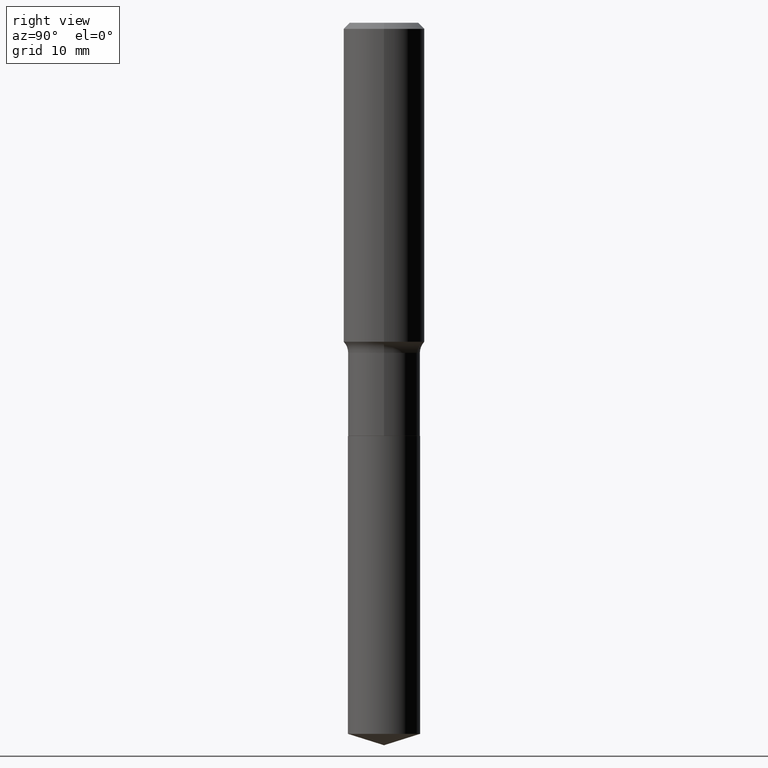
[diagram: clean part render]
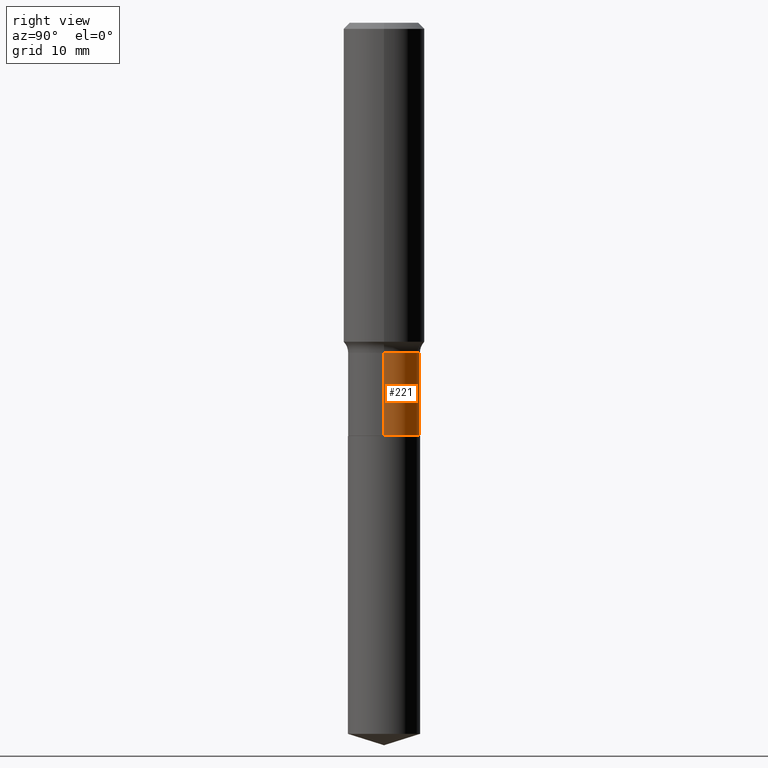
[diagram: same view with one face highlighted and labeled with its STEP entity id]
A machine part, right view. The second image highlights one B-rep face of the part: STEP entity #221.
In plain terms, the highlighted cylindrical surface (edge-blend (fillet) strip) has radius 4.4501 mm, axis along (-0, 0, 1).
Its self-contained STEP definition (entity closure, byte-faithful):
#8 = EDGE_CURVE ( 'NONE', #321, #196, #37, .T. ) ;
#22 = CYLINDRICAL_SURFACE ( 'NONE', #481, 0.1751999999999999391 ) ;
#28 = CIRCLE ( 'NONE', #66, 0.1751999999999999391 ) ;
#35 = CARTESIAN_POINT ( 'NONE',  ( 3.914951011821784364E-29, -5.589512475353991008E-15, -1.600899999999999768 ) ) ;
#37 = LINE ( 'NONE', #385, #266 ) ;
#51 = VERTEX_POINT ( 'NONE', #237 ) ;
#66 = AXIS2_PLACEMENT_3D ( 'NONE', #35, #347, #145 ) ;
#95 = CARTESIAN_POINT ( 'NONE',  ( 0.1751999999999999946, -8.218248775368990478E-15, -2.003399999999999626 ) ) ;
#118 = VERTEX_POINT ( 'NONE', #241 ) ;
#145 = DIRECTION ( 'NONE',  ( 1.000000000000000000, -6.982962677686265133E-15, 0.000000000000000000 ) ) ;
#163 = CARTESIAN_POINT ( 'NONE',  ( -0.1751999999999999391, 1.244870873051695093E-15, -8.617974278126592972E-30 ) ) ;
#165 = CIRCLE ( 'NONE', #425, 0.1751999999999999946 ) ;
#196 = VERTEX_POINT ( 'NONE', #401 ) ;
#213 = LINE ( 'NONE', #163, #488 ) ;
#221 = ADVANCED_FACE ( 'NONE', ( #442 ), #22, .T. ) ;
#232 = ORIENTED_EDGE ( 'NONE', *, *, #314, .T. ) ;
#234 = DIRECTION ( 'NONE',  ( -2.445468806185136877E-29, 3.491481338843145188E-15, 1.000000000000000000 ) ) ;
#237 = CARTESIAN_POINT ( 'NONE',  ( -0.1751999999999999391, -5.047302221744479303E-15, -1.600899999999999768 ) ) ;
#241 = CARTESIAN_POINT ( 'NONE',  ( -0.1751999999999999946, -5.047302221744479303E-15, -2.003399999999999626 ) ) ;
#242 = ORIENTED_EDGE ( 'NONE', *, *, #8, .F. ) ;
#245 = DIRECTION ( 'NONE',  ( -2.445468806185136597E-29, 3.491481338843145583E-15, 1.000000000000000000 ) ) ;
#252 = DIRECTION ( 'NONE',  ( 1.000000000000000000, -6.982962677686266711E-15, 4.876176775795935793E-29 ) ) ;
#253 = DIRECTION ( 'NONE',  ( 1.000000000000000000, -6.982962677686269077E-15, 0.000000000000000000 ) ) ;
#266 = VECTOR ( 'NONE', #234, 39.37007874015748143 ) ;
#283 = EDGE_CURVE ( 'NONE', #321, #118, #165, .T. ) ;
#293 = CARTESIAN_POINT ( 'NONE',  ( 4.899252206311301777E-29, -6.994833714238356601E-15, -2.003399999999999626 ) ) ;
#314 = EDGE_CURVE ( 'NONE', #118, #51, #213, .T. ) ;
#321 = VERTEX_POINT ( 'NONE', #95 ) ;
#326 = DIRECTION ( 'NONE',  ( -2.445468806185136877E-29, 3.491481338843145188E-15, 1.000000000000000000 ) ) ;
#347 = DIRECTION ( 'NONE',  ( -2.445468806185136597E-29, 3.491481338843145583E-15, 1.000000000000000000 ) ) ;
#358 = ORIENTED_EDGE ( 'NONE', *, *, #283, .T. ) ;
#370 = CARTESIAN_POINT ( 'NONE',  ( 0.000000000000000000, 0.000000000000000000, 0.000000000000000000 ) ) ;
#385 = CARTESIAN_POINT ( 'NONE',  ( 0.1751999999999999391, -1.223415061130633483E-15, 8.543061711194476516E-30 ) ) ;
#401 = CARTESIAN_POINT ( 'NONE',  ( 0.1751999999999999391, -6.812927536484624885E-15, -1.600899999999999768 ) ) ;
#403 = DIRECTION ( 'NONE',  ( -2.445468806185136597E-29, 3.491481338843145583E-15, 1.000000000000000000 ) ) ;
#425 = AXIS2_PLACEMENT_3D ( 'NONE', #293, #403, #253 ) ;
#442 = FACE_OUTER_BOUND ( 'NONE', #467, .T. ) ;
#454 = EDGE_CURVE ( 'NONE', #196, #51, #28, .T. ) ;
#467 = EDGE_LOOP ( 'NONE', ( #358, #232, #477, #242 ) ) ;
#477 = ORIENTED_EDGE ( 'NONE', *, *, #454, .F. ) ;
#481 = AXIS2_PLACEMENT_3D ( 'NONE', #370, #245, #252 ) ;
#488 = VECTOR ( 'NONE', #326, 39.37007874015748143 ) ;